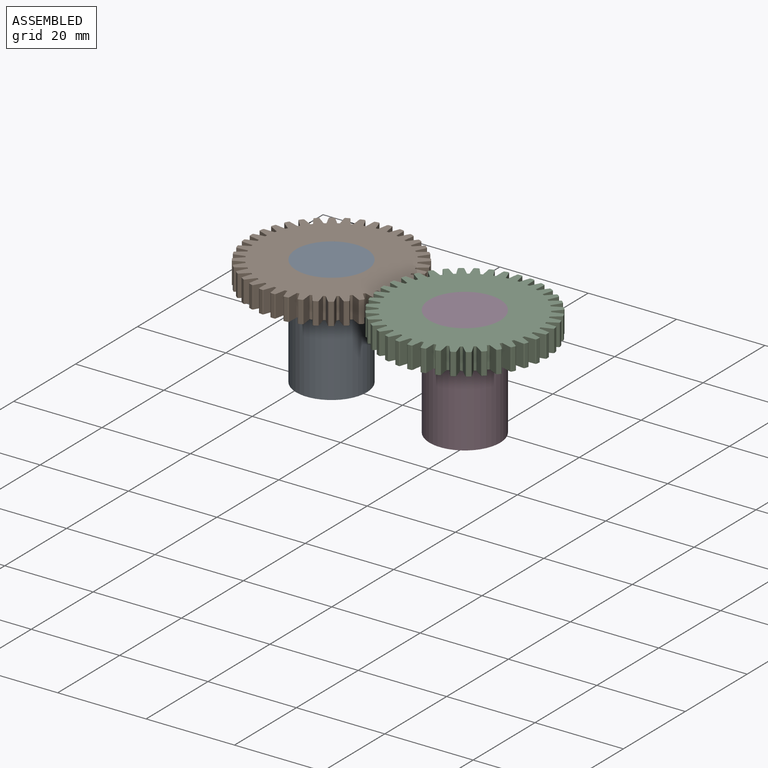
[diagram: assembled view]
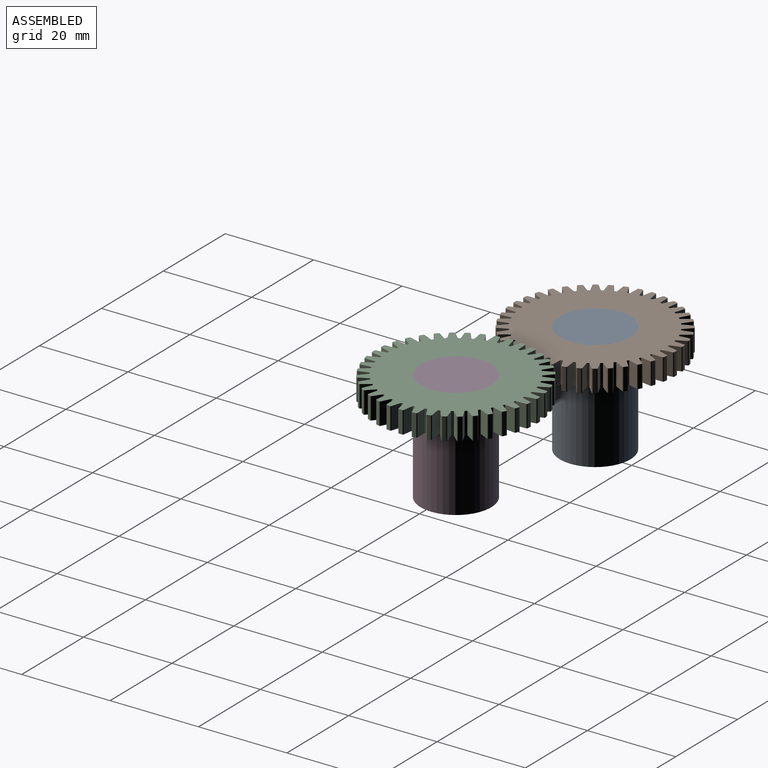
[diagram: assembled view, second angle]
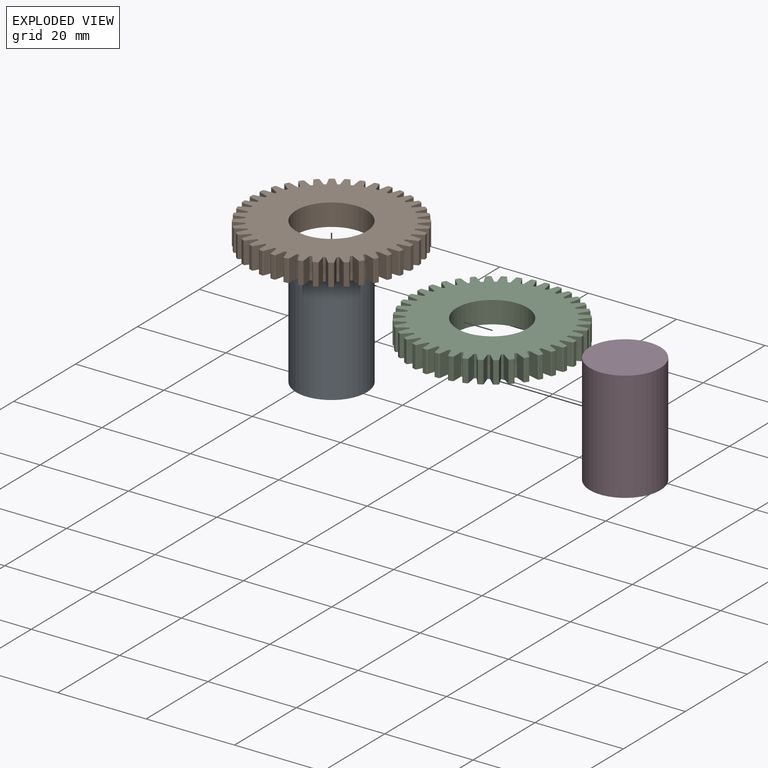
[diagram: exploded view]
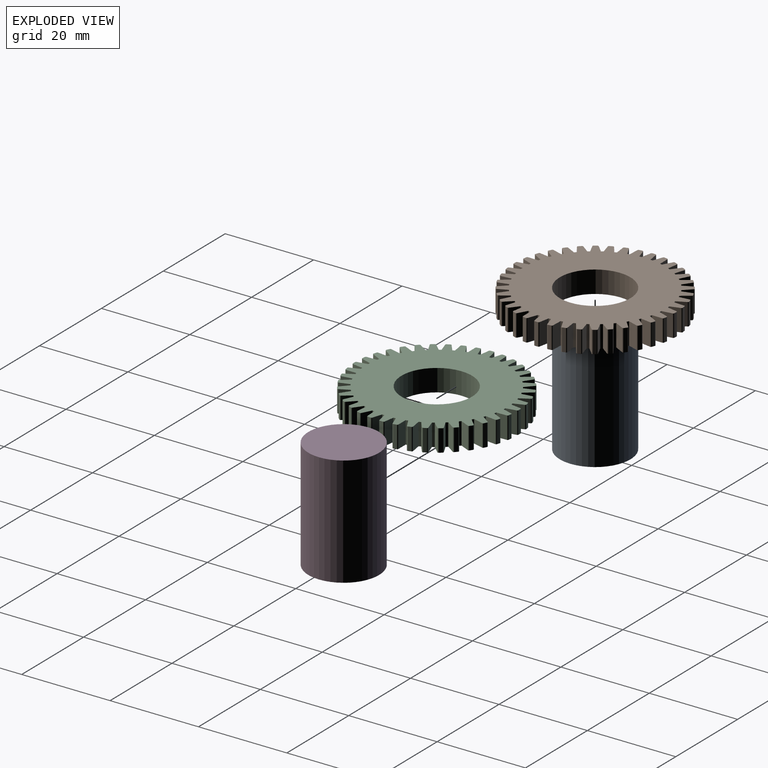
[diagram: exploded view, second angle]
ASSEMBLY  parts=4 mates=2
PART A: 3 faces, bbox 16x16x25 mm
  f0: cylinder r=8mm len=25mm, axis (0,0,-1), area 1256.6mm2, adj f1,f2
  f1: plane 16x16mm, normal (0,0,1), area 201.1mm2, adj f0
  f2: plane 16x16mm, normal (0,0,-1), area 201.1mm2, adj f0
PART B: 243 faces, bbox 36.9x36.9x5 mm
  f0: plane 5x2.31mm, normal (0.99,0.14,0), area 11.6mm2, adj f1,f240,f241,f242
  f1: cylinder r=16mm len=5mm, axis (0,0,-1), area 2.6mm2, adj f0,f2,f241,f242
  f2: plane 5x1.86mm, normal (-0.8,-0.6,0), area 11.6mm2, adj f1,f3,f241,f242
  f3: cylinder r=0.25mm len=5mm, axis (0,0,-1), area 1.7mm2, adj f2,f4,f241,f242
  f4: plane 5x0.62mm, normal (0.45,-0.89,0), area 3.5mm2, adj f3,f5,f241,f242
  f5: cylinder r=0.25mm len=5mm, axis (0,0,-1), area 1.7mm2, adj f4,f6,f241,f242
  f6: plane 5x2.23mm, normal (0.96,0.29,0), area 11.6mm2, adj f5,f7,f241,f242
  f7: cylinder r=16mm len=5mm, axis (0,0,-1), area 2.6mm2, adj f6,f8,f241,f242
  f8: plane 5x1.68mm, normal (-0.69,-0.72,0), area 11.6mm2, adj f7,f9,f241,f242
  f9: cylinder r=0.25mm len=5mm, axis (0,0,-1), area 1.7mm2, adj f8,f10,f241,f242
  f10: plane 5x0.57mm, normal (0.59,-0.81,0), area 3.5mm2, adj f9,f11,f241,f242
  f11: cylinder r=0.25mm len=5mm, axis (0,0,-1), area 1.7mm2, adj f10,f12,f241,f242
  f12: plane 5x2.09mm, normal (0.9,0.44,0), area 11.6mm2, adj f11,f13,f241,f242
  f13: cylinder r=16mm len=5mm, axis (0,0,-1), area 2.6mm2, adj f12,f14,f241,f242
  f14: plane 5x1.91mm, normal (-0.57,-0.82,0), area 11.6mm2, adj f13,f15,f241,f242
  f15: cylinder r=0.25mm len=5mm, axis (0,0,-1), area 1.7mm2, adj f14,f16,f241,f242
  f16: plane 5x0.49mm, normal (0.71,-0.71,0), area 3.5mm2, adj f15,f17,f241,f242
  f17: cylinder r=0.25mm len=5mm, axis (0,0,-1), area 1.7mm2, adj f16,f18,f241,f242
  f18: plane 5x1.91mm, normal (0.82,0.57,0), area 11.6mm2, adj f17,f19,f241,f242
  f19: cylinder r=16mm len=5mm, axis (0,0,-1), area 2.6mm2, adj f18,f20,f241,f242
  f20: plane 5x2.09mm, normal (-0.44,-0.9,0), area 11.6mm2, adj f19,f21,f241,f242
  f21: cylinder r=0.25mm len=5mm, axis (0,0,-1), area 1.7mm2, adj f20,f22,f241,f242
  f22: plane 5x0.57mm, normal (0.81,-0.59,0), area 3.5mm2, adj f21,f23,f241,f242
  f23: cylinder r=0.25mm len=5mm, axis (0,0,-1), area 1.7mm2, adj f22,f24,f241,f242
  f24: plane 5x1.68mm, normal (0.72,0.69,0), area 11.6mm2, adj f23,f25,f241,f242
  f25: cylinder r=16mm len=5mm, axis (0,0,-1), area 2.6mm2, adj f24,f26,f241,f242
  f26: plane 5x2.23mm, normal (-0.29,-0.96,0), area 11.6mm2, adj f25,f27,f241,f242
  f27: cylinder r=0.25mm len=5mm, axis (0,0,-1), area 1.7mm2, adj f26,f28,f241,f242
  f28: plane 5x0.62mm, normal (0.89,-0.45,0), area 3.5mm2, adj f27,f29,f241,f242
  f29: cylinder r=0.25mm len=5mm, axis (0,0,-1), area 1.7mm2, adj f28,f30,f241,f242
  f30: plane 5x1.86mm, normal (0.6,0.8,0), area 11.6mm2, adj f29,f31,f241,f242
  f31: cylinder r=16mm len=5mm, axis (0,0,-1), area 2.6mm2, adj f30,f32,f241,f242
  f32: plane 5x2.31mm, normal (-0.14,-0.99,0), area 11.6mm2, adj f31,f33,f241,f242
  f33: cylinder r=0.25mm len=5mm, axis (0,0,-1), area 1.7mm2, adj f32,f34,f241,f242
  f34: plane 5x0.66mm, normal (0.95,-0.31,0), area 3.5mm2, adj f33,f35,f241,f242
  f35: cylinder r=0.25mm len=5mm, axis (0,0,-1), area 1.7mm2, adj f34,f36,f241,f242
  f36: plane 5x2.06mm, normal (0.47,0.88,0), area 11.6mm2, adj f35,f37,f241,f242
  f37: cylinder r=16mm len=5mm, axis (0,0,-1), area 2.6mm2, adj f36,f38,f241,f242
  f38: plane 5x2.33mm, normal (0.02,-1,0), area 11.6mm2, adj f37,f39,f241,f242
  f39: cylinder r=0.25mm len=5mm, axis (0,0,-1), area 1.7mm2, adj f38,f40,f241,f242
  f40: plane 5x0.69mm, normal (0.99,-0.16,0), area 3.5mm2, adj f39,f41,f241,f242
  f41: cylinder r=0.25mm len=5mm, axis (0,0,-1), area 1.7mm2, adj f40,f42,f241,f242
  f42: plane 5x2.2mm, normal (0.33,0.95,0), area 11.6mm2, adj f41,f43,f241,f242
  f43: cylinder r=16mm len=5mm, axis (0,0,-1), area 2.6mm2, adj f42,f44,f241,f242
  f44: plane 5x2.29mm, normal (0.17,-0.98,0), area 11.6mm2, adj f43,f45,f241,f242
  f45: cylinder r=0.25mm len=5mm, axis (0,0,-1), area 1.7mm2, adj f44,f46,f241,f242
  f46: plane 5x0.7mm, normal (1,0,0), area 3.5mm2, adj f45,f47,f241,f242
  f47: cylinder r=0.25mm len=5mm, axis (0,0,-1), area 1.7mm2, adj f46,f48,f241,f242
  f48: plane 5x2.29mm, normal (0.17,0.98,0), area 11.6mm2, adj f47,f49,f241,f242
  f49: cylinder r=16mm len=5mm, axis (0,0,-1), area 2.6mm2, adj f48,f50,f241,f242
  f50: plane 5x2.2mm, normal (0.33,-0.95,0), area 11.6mm2, adj f49,f51,f241,f242
  f51: cylinder r=0.25mm len=5mm, axis (0,0,-1), area 1.7mm2, adj f50,f52,f241,f242
  f52: plane 5x0.69mm, normal (0.99,0.16,0), area 3.5mm2, adj f51,f53,f241,f242
  f53: cylinder r=0.25mm len=5mm, axis (0,0,-1), area 1.7mm2, adj f52,f54,f241,f242
  f54: plane 5x2.33mm, normal (0.02,1,0), area 11.6mm2, adj f53,f55,f241,f242
  f55: cylinder r=16mm len=5mm, axis (0,0,-1), area 2.6mm2, adj f54,f56,f241,f242
  f56: plane 5x2.06mm, normal (0.47,-0.88,0), area 11.6mm2, adj f55,f57,f241,f242
  f57: cylinder r=0.25mm len=5mm, axis (0,0,-1), area 1.7mm2, adj f56,f58,f241,f242
  f58: plane 5x0.66mm, normal (0.95,0.31,0), area 3.5mm2, adj f57,f59,f241,f242
  f59: cylinder r=0.25mm len=5mm, axis (0,0,-1), area 1.7mm2, adj f58,f60,f241,f242
  f60: plane 5x2.31mm, normal (-0.14,0.99,0), area 11.6mm2, adj f59,f61,f241,f242
  f61: cylinder r=16mm len=5mm, axis (0,0,-1), area 2.6mm2, adj f60,f62,f241,f242
  f62: plane 5x1.86mm, normal (0.6,-0.8,0), area 11.6mm2, adj f61,f63,f241,f242
  f63: cylinder r=0.25mm len=5mm, axis (0,0,-1), area 1.7mm2, adj f62,f64,f241,f242
  f64: plane 5x0.62mm, normal (0.89,0.45,0), area 3.5mm2, adj f63,f65,f241,f242
  f65: cylinder r=0.25mm len=5mm, axis (0,0,-1), area 1.7mm2, adj f64,f66,f241,f242
  f66: plane 5x2.23mm, normal (-0.29,0.96,0), area 11.6mm2, adj f65,f67,f241,f242
  f67: cylinder r=16mm len=5mm, axis (0,0,-1), area 2.6mm2, adj f66,f68,f241,f242
  f68: plane 5x1.68mm, normal (0.72,-0.69,0), area 11.6mm2, adj f67,f69,f241,f242
  f69: cylinder r=0.25mm len=5mm, axis (0,0,-1), area 1.7mm2, adj f68,f70,f241,f242
  f70: plane 5x0.57mm, normal (0.81,0.59,0), area 3.5mm2, adj f69,f71,f241,f242
  f71: cylinder r=0.25mm len=5mm, axis (0,0,-1), area 1.7mm2, adj f70,f72,f241,f242
  f72: plane 5x2.09mm, normal (-0.44,0.9,0), area 11.6mm2, adj f71,f73,f241,f242
  f73: cylinder r=16mm len=5mm, axis (0,0,-1), area 2.6mm2, adj f72,f74,f241,f242
  f74: plane 5x1.91mm, normal (0.82,-0.57,0), area 11.6mm2, adj f73,f75,f241,f242
  f75: cylinder r=0.25mm len=5mm, axis (0,0,-1), area 1.7mm2, adj f74,f76,f241,f242
  f76: plane 5x0.49mm, normal (0.71,0.71,0), area 3.5mm2, adj f75,f77,f241,f242
  f77: cylinder r=0.25mm len=5mm, axis (0,0,-1), area 1.7mm2, adj f76,f78,f241,f242
  f78: plane 5x1.91mm, normal (-0.57,0.82,0), area 11.6mm2, adj f77,f79,f241,f242
  f79: cylinder r=16mm len=5mm, axis (0,0,-1), area 2.6mm2, adj f78,f80,f241,f242
  f80: plane 5x2.09mm, normal (0.9,-0.44,0), area 11.6mm2, adj f79,f81,f241,f242
  f81: cylinder r=0.25mm len=5mm, axis (0,0,-1), area 1.7mm2, adj f80,f82,f241,f242
  f82: plane 5x0.57mm, normal (0.59,0.81,0), area 3.5mm2, adj f81,f83,f241,f242
  f83: cylinder r=0.25mm len=5mm, axis (0,0,-1), area 1.7mm2, adj f82,f84,f241,f242
  f84: plane 5x1.68mm, normal (-0.69,0.72,0), area 11.6mm2, adj f83,f85,f241,f242
  f85: cylinder r=16mm len=5mm, axis (0,0,-1), area 2.6mm2, adj f84,f86,f241,f242
  f86: plane 5x2.23mm, normal (0.96,-0.29,0), area 11.6mm2, adj f85,f87,f241,f242
  f87: cylinder r=0.25mm len=5mm, axis (0,0,-1), area 1.7mm2, adj f86,f88,f241,f242
  f88: plane 5x0.62mm, normal (0.45,0.89,0), area 3.5mm2, adj f87,f89,f241,f242
  f89: cylinder r=0.25mm len=5mm, axis (0,0,-1), area 1.7mm2, adj f88,f90,f241,f242
  f90: plane 5x1.86mm, normal (-0.8,0.6,0), area 11.6mm2, adj f89,f91,f241,f242
  f91: cylinder r=16mm len=5mm, axis (0,0,-1), area 2.6mm2, adj f90,f92,f241,f242
  f92: plane 5x2.31mm, normal (0.99,-0.14,0), area 11.6mm2, adj f91,f93,f241,f242
  f93: cylinder r=0.25mm len=5mm, axis (0,0,-1), area 1.7mm2, adj f92,f94,f241,f242
  f94: plane 5x0.66mm, normal (0.31,0.95,0), area 3.5mm2, adj f93,f95,f241,f242
  f95: cylinder r=0.25mm len=5mm, axis (0,0,-1), area 1.7mm2, adj f94,f96,f241,f242
  f96: plane 5x2.06mm, normal (-0.88,0.47,0), area 11.6mm2, adj f95,f97,f241,f242
  f97: cylinder r=16mm len=5mm, axis (0,0,-1), area 2.6mm2, adj f96,f98,f241,f242
  f98: plane 5x2.33mm, normal (1,0.02,0), area 11.6mm2, adj f97,f99,f241,f242
  f99: cylinder r=0.25mm len=5mm, axis (0,0,-1), area 1.7mm2, adj f98,f100,f241,f242
  f100: plane 5x0.69mm, normal (0.16,0.99,0), area 3.5mm2, adj f99,f101,f241,f242
  f101: cylinder r=0.25mm len=5mm, axis (0,0,-1), area 1.7mm2, adj f100,f102,f241,f242
  f102: plane 5x2.2mm, normal (-0.95,0.33,0), area 11.6mm2, adj f101,f103,f241,f242
  f103: cylinder r=16mm len=5mm, axis (0,0,-1), area 2.6mm2, adj f102,f104,f241,f242
  f104: plane 5x2.29mm, normal (0.98,0.17,0), area 11.6mm2, adj f103,f105,f241,f242
  f105: cylinder r=0.25mm len=5mm, axis (0,0,-1), area 1.7mm2, adj f104,f106,f241,f242
  f106: plane 5x0.7mm, normal (0,1,0), area 3.5mm2, adj f105,f107,f241,f242
  f107: cylinder r=0.25mm len=5mm, axis (0,0,-1), area 1.7mm2, adj f106,f108,f241,f242
  f108: plane 5x2.29mm, normal (-0.98,0.17,0), area 11.6mm2, adj f107,f109,f241,f242
  f109: cylinder r=16mm len=5mm, axis (0,0,-1), area 2.6mm2, adj f108,f110,f241,f242
  f110: plane 5x2.2mm, normal (0.95,0.33,0), area 11.6mm2, adj f109,f111,f241,f242
  f111: cylinder r=0.25mm len=5mm, axis (0,0,-1), area 1.7mm2, adj f110,f112,f241,f242
  f112: plane 5x0.69mm, normal (-0.16,0.99,0), area 3.5mm2, adj f111,f113,f241,f242
  f113: cylinder r=0.25mm len=5mm, axis (0,0,-1), area 1.7mm2, adj f112,f114,f241,f242
  f114: plane 5x2.33mm, normal (-1,0.02,0), area 11.6mm2, adj f113,f115,f241,f242
  f115: cylinder r=16mm len=5mm, axis (0,0,-1), area 2.6mm2, adj f114,f116,f241,f242
  f116: plane 5x2.06mm, normal (0.88,0.47,0), area 11.6mm2, adj f115,f117,f241,f242
  f117: cylinder r=0.25mm len=5mm, axis (0,0,-1), area 1.7mm2, adj f116,f118,f241,f242
  f118: plane 5x0.66mm, normal (-0.31,0.95,0), area 3.5mm2, adj f117,f119,f241,f242
  f119: cylinder r=0.25mm len=5mm, axis (0,0,-1), area 1.7mm2, adj f118,f120,f241,f242
  f120: plane 5x2.31mm, normal (-0.99,-0.14,0), area 11.6mm2, adj f119,f121,f241,f242
  f121: cylinder r=16mm len=5mm, axis (0,0,-1), area 2.6mm2, adj f120,f122,f241,f242
  f122: plane 5x1.86mm, normal (0.8,0.6,0), area 11.6mm2, adj f121,f123,f241,f242
  f123: cylinder r=0.25mm len=5mm, axis (0,0,-1), area 1.7mm2, adj f122,f124,f241,f242
  f124: plane 5x0.62mm, normal (-0.45,0.89,0), area 3.5mm2, adj f123,f125,f241,f242
  f125: cylinder r=0.25mm len=5mm, axis (0,0,-1), area 1.7mm2, adj f124,f126,f241,f242
  f126: plane 5x2.23mm, normal (-0.96,-0.29,0), area 11.6mm2, adj f125,f127,f241,f242
  f127: cylinder r=16mm len=5mm, axis (0,0,-1), area 2.6mm2, adj f126,f128,f241,f242
  f128: plane 5x1.68mm, normal (0.69,0.72,0), area 11.6mm2, adj f127,f129,f241,f242
  f129: cylinder r=0.25mm len=5mm, axis (0,0,-1), area 1.7mm2, adj f128,f130,f241,f242
  f130: plane 5x0.57mm, normal (-0.59,0.81,0), area 3.5mm2, adj f129,f131,f241,f242
  f131: cylinder r=0.25mm len=5mm, axis (0,0,-1), area 1.7mm2, adj f130,f132,f241,f242
  f132: plane 5x2.09mm, normal (-0.9,-0.44,0), area 11.6mm2, adj f131,f133,f241,f242
  f133: cylinder r=16mm len=5mm, axis (0,0,-1), area 2.6mm2, adj f132,f134,f241,f242
  f134: plane 5x1.91mm, normal (0.57,0.82,0), area 11.6mm2, adj f133,f135,f241,f242
  f135: cylinder r=0.25mm len=5mm, axis (0,0,-1), area 1.7mm2, adj f134,f136,f241,f242
  f136: plane 5x0.49mm, normal (-0.71,0.71,0), area 3.5mm2, adj f135,f137,f241,f242
  f137: cylinder r=0.25mm len=5mm, axis (0,0,-1), area 1.7mm2, adj f136,f138,f241,f242
  f138: plane 5x1.91mm, normal (-0.82,-0.57,0), area 11.6mm2, adj f137,f139,f241,f242
  f139: cylinder r=16mm len=5mm, axis (0,0,-1), area 2.6mm2, adj f138,f140,f241,f242
  f140: plane 5x2.09mm, normal (0.44,0.9,0), area 11.6mm2, adj f139,f141,f241,f242
  f141: cylinder r=0.25mm len=5mm, axis (0,0,-1), area 1.7mm2, adj f140,f142,f241,f242
  f142: plane 5x0.57mm, normal (-0.81,0.59,0), area 3.5mm2, adj f141,f143,f241,f242
  f143: cylinder r=0.25mm len=5mm, axis (0,0,-1), area 1.7mm2, adj f142,f144,f241,f242
  f144: plane 5x1.68mm, normal (-0.72,-0.69,0), area 11.6mm2, adj f143,f145,f241,f242
  f145: cylinder r=16mm len=5mm, axis (0,0,-1), area 2.6mm2, adj f144,f146,f241,f242
  f146: plane 5x2.23mm, normal (0.29,0.96,0), area 11.6mm2, adj f145,f147,f241,f242
  f147: cylinder r=0.25mm len=5mm, axis (0,0,-1), area 1.7mm2, adj f146,f148,f241,f242
  f148: plane 5x0.62mm, normal (-0.89,0.45,0), area 3.5mm2, adj f147,f149,f241,f242
  f149: cylinder r=0.25mm len=5mm, axis (0,0,-1), area 1.7mm2, adj f148,f150,f241,f242
  f150: plane 5x1.86mm, normal (-0.6,-0.8,0), area 11.6mm2, adj f149,f151,f241,f242
  f151: cylinder r=16mm len=5mm, axis (0,0,-1), area 2.6mm2, adj f150,f152,f241,f242
  f152: plane 5x2.31mm, normal (0.14,0.99,0), area 11.6mm2, adj f151,f153,f241,f242
  f153: cylinder r=0.25mm len=5mm, axis (0,0,-1), area 1.7mm2, adj f152,f154,f241,f242
  f154: plane 5x0.66mm, normal (-0.95,0.31,0), area 3.5mm2, adj f153,f155,f241,f242
  f155: cylinder r=0.25mm len=5mm, axis (0,0,-1), area 1.7mm2, adj f154,f156,f241,f242
  f156: plane 5x2.06mm, normal (-0.47,-0.88,0), area 11.6mm2, adj f155,f157,f241,f242
  f157: cylinder r=16mm len=5mm, axis (0,0,-1), area 2.6mm2, adj f156,f158,f241,f242
  f158: plane 5x2.33mm, normal (-0.02,1,0), area 11.6mm2, adj f157,f159,f241,f242
  f159: cylinder r=0.25mm len=5mm, axis (0,0,-1), area 1.7mm2, adj f158,f160,f241,f242
  f160: plane 5x0.69mm, normal (-0.99,0.16,0), area 3.5mm2, adj f159,f161,f241,f242
  f161: cylinder r=0.25mm len=5mm, axis (0,0,-1), area 1.7mm2, adj f160,f162,f241,f242
  f162: plane 5x2.2mm, normal (-0.33,-0.95,0), area 11.6mm2, adj f161,f163,f241,f242
  f163: cylinder r=16mm len=5mm, axis (0,0,-1), area 2.6mm2, adj f162,f164,f241,f242
  f164: plane 5x2.29mm, normal (-0.17,0.98,0), area 11.6mm2, adj f163,f165,f241,f242
  f165: cylinder r=0.25mm len=5mm, axis (0,0,-1), area 1.7mm2, adj f164,f166,f241,f242
  f166: plane 5x0.7mm, normal (-1,0,0), area 3.5mm2, adj f165,f167,f241,f242
  f167: cylinder r=0.25mm len=5mm, axis (0,0,-1), area 1.7mm2, adj f166,f168,f241,f242
  f168: plane 5x2.29mm, normal (-0.17,-0.98,0), area 11.6mm2, adj f167,f169,f241,f242
  f169: cylinder r=16mm len=5mm, axis (0,0,-1), area 2.6mm2, adj f168,f170,f241,f242
  f170: plane 5x2.2mm, normal (-0.33,0.95,0), area 11.6mm2, adj f169,f171,f241,f242
  f171: cylinder r=0.25mm len=5mm, axis (0,0,-1), area 1.7mm2, adj f170,f172,f241,f242
  f172: plane 5x0.69mm, normal (-0.99,-0.16,0), area 3.5mm2, adj f171,f173,f241,f242
  f173: cylinder r=0.25mm len=5mm, axis (0,0,-1), area 1.7mm2, adj f172,f174,f241,f242
  f174: plane 5x2.33mm, normal (-0.02,-1,0), area 11.6mm2, adj f173,f175,f241,f242
  f175: cylinder r=16mm len=5mm, axis (0,0,-1), area 2.6mm2, adj f174,f176,f241,f242
  f176: plane 5x2.06mm, normal (-0.47,0.88,0), area 11.6mm2, adj f175,f177,f241,f242
  f177: cylinder r=0.25mm len=5mm, axis (0,0,-1), area 1.7mm2, adj f176,f178,f241,f242
  f178: plane 5x0.66mm, normal (-0.95,-0.31,0), area 3.5mm2, adj f177,f179,f241,f242
  f179: cylinder r=0.25mm len=5mm, axis (0,0,-1), area 1.7mm2, adj f178,f180,f241,f242
  f180: plane 5x2.31mm, normal (0.14,-0.99,0), area 11.6mm2, adj f179,f181,f241,f242
  f181: cylinder r=16mm len=5mm, axis (0,0,-1), area 2.6mm2, adj f180,f182,f241,f242
  f182: plane 5x1.86mm, normal (-0.6,0.8,0), area 11.6mm2, adj f181,f183,f241,f242
  f183: cylinder r=0.25mm len=5mm, axis (0,0,-1), area 1.7mm2, adj f182,f184,f241,f242
  f184: plane 5x0.62mm, normal (-0.89,-0.45,0), area 3.5mm2, adj f183,f185,f241,f242
  f185: cylinder r=0.25mm len=5mm, axis (0,0,-1), area 1.7mm2, adj f184,f186,f241,f242
  f186: plane 5x2.23mm, normal (0.29,-0.96,0), area 11.6mm2, adj f185,f187,f241,f242
  f187: cylinder r=16mm len=5mm, axis (0,0,-1), area 2.6mm2, adj f186,f188,f241,f242
  f188: plane 5x1.68mm, normal (-0.72,0.69,0), area 11.6mm2, adj f187,f189,f241,f242
  f189: cylinder r=0.25mm len=5mm, axis (0,0,-1), area 1.7mm2, adj f188,f190,f241,f242
  f190: plane 5x0.57mm, normal (-0.81,-0.59,0), area 3.5mm2, adj f189,f191,f241,f242
  f191: cylinder r=0.25mm len=5mm, axis (0,0,-1), area 1.7mm2, adj f190,f192,f241,f242
  f192: plane 5x2.09mm, normal (0.44,-0.9,0), area 11.6mm2, adj f191,f193,f241,f242
  f193: cylinder r=16mm len=5mm, axis (0,0,-1), area 2.6mm2, adj f192,f194,f241,f242
  f194: plane 5x1.91mm, normal (-0.82,0.57,0), area 11.6mm2, adj f193,f195,f241,f242
  f195: cylinder r=0.25mm len=5mm, axis (0,0,-1), area 1.7mm2, adj f194,f196,f241,f242
  f196: plane 5x0.49mm, normal (-0.71,-0.71,0), area 3.5mm2, adj f195,f197,f241,f242
  f197: cylinder r=0.25mm len=5mm, axis (0,0,-1), area 1.7mm2, adj f196,f198,f241,f242
  f198: plane 5x1.91mm, normal (0.57,-0.82,0), area 11.6mm2, adj f197,f199,f241,f242
  f199: cylinder r=16mm len=5mm, axis (0,0,-1), area 2.6mm2, adj f198,f200,f241,f242
  f200: plane 5x2.09mm, normal (-0.9,0.44,0), area 11.6mm2, adj f199,f201,f241,f242
  f201: cylinder r=0.25mm len=5mm, axis (0,0,-1), area 1.7mm2, adj f200,f202,f241,f242
  f202: plane 5x0.57mm, normal (-0.59,-0.81,0), area 3.5mm2, adj f201,f203,f241,f242
  f203: cylinder r=0.25mm len=5mm, axis (0,0,-1), area 1.7mm2, adj f202,f204,f241,f242
  f204: plane 5x1.68mm, normal (0.69,-0.72,0), area 11.6mm2, adj f203,f205,f241,f242
  f205: cylinder r=16mm len=5mm, axis (0,0,-1), area 2.6mm2, adj f204,f206,f241,f242
  f206: plane 5x2.23mm, normal (-0.96,0.29,0), area 11.6mm2, adj f205,f207,f241,f242
  f207: cylinder r=0.25mm len=5mm, axis (0,0,-1), area 1.7mm2, adj f206,f208,f241,f242
  f208: plane 5x0.62mm, normal (-0.45,-0.89,0), area 3.5mm2, adj f207,f209,f241,f242
  f209: cylinder r=0.25mm len=5mm, axis (0,0,-1), area 1.7mm2, adj f208,f210,f241,f242
  f210: plane 5x1.86mm, normal (0.8,-0.6,0), area 11.6mm2, adj f209,f211,f241,f242
  f211: cylinder r=16mm len=5mm, axis (0,0,-1), area 2.6mm2, adj f210,f212,f241,f242
  f212: plane 5x2.31mm, normal (-0.99,0.14,0), area 11.6mm2, adj f211,f213,f241,f242
  f213: cylinder r=0.25mm len=5mm, axis (0,0,-1), area 1.7mm2, adj f212,f214,f241,f242
  f214: plane 5x0.66mm, normal (-0.31,-0.95,0), area 3.5mm2, adj f213,f215,f241,f242
  f215: cylinder r=0.25mm len=5mm, axis (0,0,-1), area 1.7mm2, adj f214,f216,f241,f242
  f216: plane 5x2.06mm, normal (0.88,-0.47,0), area 11.6mm2, adj f215,f217,f241,f242
  f217: cylinder r=16mm len=5mm, axis (0,0,-1), area 2.6mm2, adj f216,f218,f241,f242
  f218: plane 5x2.33mm, normal (-1,-0.02,0), area 11.6mm2, adj f217,f219,f241,f242
  f219: cylinder r=0.25mm len=5mm, axis (0,0,-1), area 1.7mm2, adj f218,f220,f241,f242
  f220: plane 5x0.69mm, normal (-0.16,-0.99,0), area 3.5mm2, adj f219,f221,f241,f242
  f221: cylinder r=0.25mm len=5mm, axis (0,0,-1), area 1.7mm2, adj f220,f222,f241,f242
  f222: plane 5x2.2mm, normal (0.95,-0.33,0), area 11.6mm2, adj f221,f223,f241,f242
  f223: cylinder r=16mm len=5mm, axis (0,0,-1), area 2.6mm2, adj f222,f224,f241,f242
  f224: plane 5x2.29mm, normal (-0.98,-0.17,0), area 11.6mm2, adj f223,f225,f241,f242
  f225: cylinder r=0.25mm len=5mm, axis (0,0,-1), area 1.7mm2, adj f224,f226,f241,f242
  f226: plane 5x0.7mm, normal (0,-1,0), area 3.5mm2, adj f225,f227,f241,f242
  f227: cylinder r=0.25mm len=5mm, axis (0,0,-1), area 1.7mm2, adj f226,f228,f241,f242
  f228: plane 5x2.29mm, normal (0.98,-0.17,0), area 11.6mm2, adj f227,f229,f241,f242
  f229: cylinder r=16mm len=5mm, axis (0,0,-1), area 2.6mm2, adj f228,f230,f241,f242
  f230: plane 5x2.2mm, normal (-0.95,-0.33,0), area 11.6mm2, adj f229,f231,f241,f242
  f231: cylinder r=0.25mm len=5mm, axis (0,0,-1), area 1.7mm2, adj f230,f232,f241,f242
  f232: plane 5x0.69mm, normal (0.16,-0.99,0), area 3.5mm2, adj f231,f233,f241,f242
  f233: cylinder r=0.25mm len=5mm, axis (0,0,-1), area 1.7mm2, adj f232,f234,f241,f242
  f234: plane 5x2.33mm, normal (1,-0.02,0), area 11.6mm2, adj f233,f235,f241,f242
  f235: cylinder r=16mm len=5mm, axis (0,0,-1), area 2.6mm2, adj f234,f236,f241,f242
  f236: plane 5x2.06mm, normal (-0.88,-0.47,0), area 11.6mm2, adj f235,f237,f241,f242
  f237: cylinder r=0.25mm len=5mm, axis (0,0,-1), area 1.7mm2, adj f236,f238,f241,f242
  f238: plane 5x0.66mm, normal (0.31,-0.95,0), area 3.5mm2, adj f237,f240,f241,f242
  f239: cylinder r=8mm len=16mm, axis (0,0,-1), area 251.3mm2, adj f241,f242
  f240: cylinder r=0.25mm len=5mm, axis (0,0,-1), area 1.7mm2, adj f0,f238,f241,f242
  f241: plane 36.94x36.94mm, normal (0,0,1), area 756.7mm2, adj f0,f1,f2,f3,f4,f5,f6,f7
  f242: plane 36.94x36.94mm, normal (0,0,-1), area 756.7mm2, adj f0,f1,f2,f3,f4,f5,f6,f7
PART C: same geometry as B
PART D: same geometry as A
PLACE A t=(-44.09,2.89,-27.5)mm fixed
PLACE B rot(axis=(0,0,1),25.8deg) t=(-44.09,2.89,-2.5)mm
PLACE C rot(axis=(0,0,-1),25.8deg) t=(-9.04,-4.07,-0.78)mm
PLACE D t=(-9.04,-4.07,-25.78)mm fixed
MATE revolute A.f0 <-> B.f239  axis (0,0,1) through (-44.09,2.89,2.5)mm
MATE revolute D.f0 <-> C.f239  axis (0,0,1) through (-9.04,-4.07,4.22)mm
